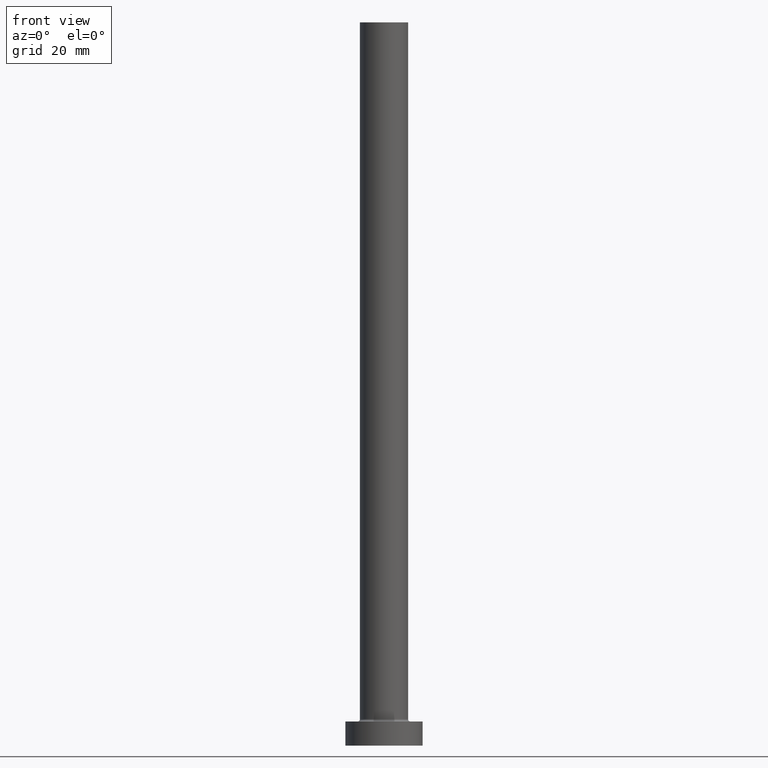
[diagram: clean part render]
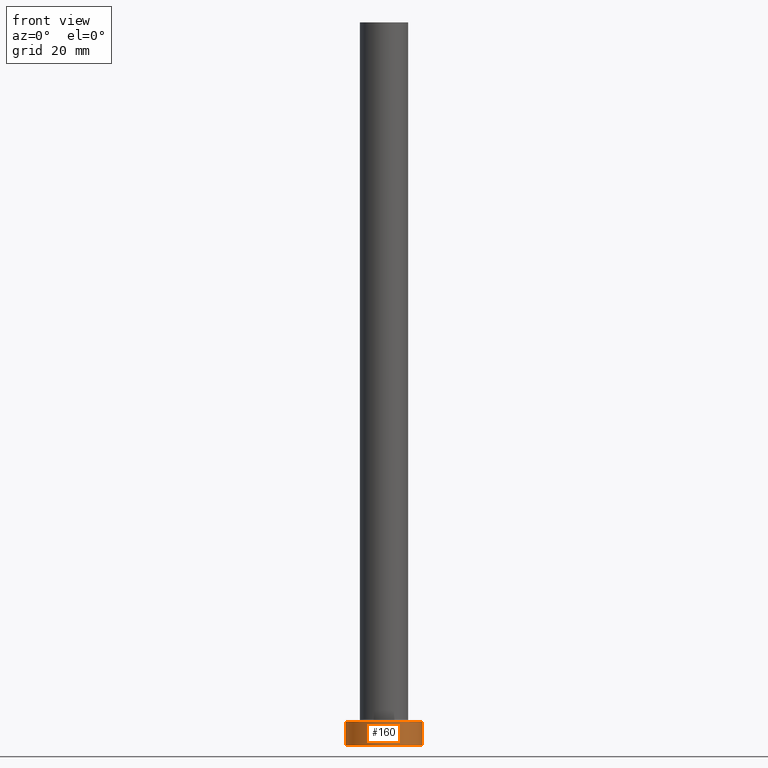
[diagram: same view with one face highlighted and labeled with its STEP entity id]
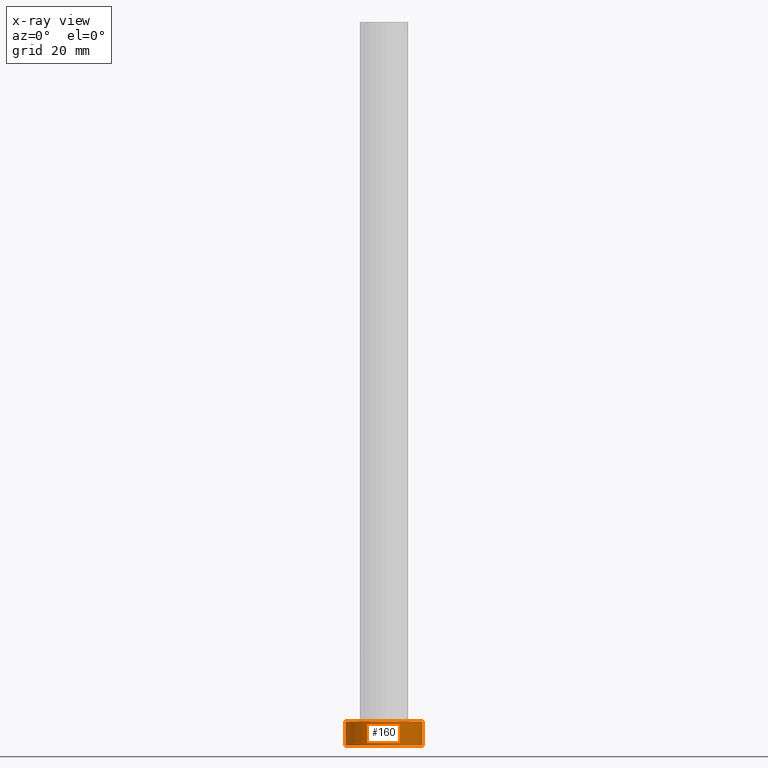
[diagram: x-ray of the same camera — body ghosted, the highlighted face saturated]
A machine part, front view. The second image highlights one B-rep face of the part: STEP entity #160.
The next image is the same camera in x-ray: the body ghosted, the highlighted face saturated — about 0% of this face is hidden behind the body in this view.
In plain terms, the highlighted cylindrical surface (partial cylindrical patch) has radius 8 mm, axis along (-0, -0, -1).
Its self-contained STEP definition (entity closure, byte-faithful):
#12 = DIRECTION ( 'NONE',  ( 1.000000000000000000, 0.000000000000000000, 0.000000000000000000 ) ) ;
#19 = DIRECTION ( 'NONE',  ( 0.000000000000000000, 0.000000000000000000, 1.000000000000000000 ) ) ;
#29 = CARTESIAN_POINT ( 'NONE',  ( 8.000000000000000000, 9.797174393178825657E-16, 5.000000000000000000 ) ) ;
#43 = DIRECTION ( 'NONE',  ( -0.000000000000000000, -0.000000000000000000, -1.000000000000000000 ) ) ;
#73 = CIRCLE ( 'NONE', #407, 8.000000000000000000 ) ;
#82 = EDGE_CURVE ( 'NONE', #322, #319, #295, .T. ) ;
#96 = LINE ( 'NONE', #234, #263 ) ;
#126 = CARTESIAN_POINT ( 'NONE',  ( 0.000000000000000000, 0.000000000000000000, 5.000000000000000000 ) ) ;
#127 = ORIENTED_EDGE ( 'NONE', *, *, #443, .F. ) ;
#134 = VERTEX_POINT ( 'NONE', #215 ) ;
#147 = FACE_OUTER_BOUND ( 'NONE', #179, .T. ) ;
#160 = ADVANCED_FACE ( 'NONE', ( #147 ), #290, .T. ) ;
#166 = LINE ( 'NONE', #29, #394 ) ;
#179 = EDGE_LOOP ( 'NONE', ( #127, #288, #230, #294 ) ) ;
#215 = CARTESIAN_POINT ( 'NONE',  ( 8.000000000000000000, 9.797174393178825657E-16, 5.000000000000000000 ) ) ;
#219 = CARTESIAN_POINT ( 'NONE',  ( 0.000000000000000000, 0.000000000000000000, 5.000000000000000000 ) ) ;
#229 = DIRECTION ( 'NONE',  ( 0.000000000000000000, 0.000000000000000000, 1.000000000000000000 ) ) ;
#230 = ORIENTED_EDGE ( 'NONE', *, *, #265, .T. ) ;
#234 = CARTESIAN_POINT ( 'NONE',  ( -8.000000000000000000, 0.000000000000000000, 5.000000000000000000 ) ) ;
#253 = EDGE_CURVE ( 'NONE', #424, #134, #73, .T. ) ;
#263 = VECTOR ( 'NONE', #282, 1000.000000000000000 ) ;
#265 = EDGE_CURVE ( 'NONE', #424, #322, #96, .T. ) ;
#267 = DIRECTION ( 'NONE',  ( 1.000000000000000000, 0.000000000000000000, 0.000000000000000000 ) ) ;
#275 = AXIS2_PLACEMENT_3D ( 'NONE', #428, #229, #12 ) ;
#278 = CARTESIAN_POINT ( 'NONE',  ( 8.000000000000000000, 9.797174393178825657E-16, 0.000000000000000000 ) ) ;
#282 = DIRECTION ( 'NONE',  ( -0.000000000000000000, -0.000000000000000000, -1.000000000000000000 ) ) ;
#288 = ORIENTED_EDGE ( 'NONE', *, *, #253, .F. ) ;
#290 = CYLINDRICAL_SURFACE ( 'NONE', #400, 8.000000000000000000 ) ;
#292 = DIRECTION ( 'NONE',  ( -1.000000000000000000, 0.000000000000000000, 0.000000000000000000 ) ) ;
#294 = ORIENTED_EDGE ( 'NONE', *, *, #82, .T. ) ;
#295 = CIRCLE ( 'NONE', #275, 8.000000000000000000 ) ;
#313 = DIRECTION ( 'NONE',  ( -0.000000000000000000, -0.000000000000000000, -1.000000000000000000 ) ) ;
#319 = VERTEX_POINT ( 'NONE', #278 ) ;
#322 = VERTEX_POINT ( 'NONE', #419 ) ;
#394 = VECTOR ( 'NONE', #313, 1000.000000000000000 ) ;
#400 = AXIS2_PLACEMENT_3D ( 'NONE', #219, #43, #292 ) ;
#407 = AXIS2_PLACEMENT_3D ( 'NONE', #126, #19, #267 ) ;
#408 = CARTESIAN_POINT ( 'NONE',  ( -8.000000000000000000, 0.000000000000000000, 5.000000000000000000 ) ) ;
#419 = CARTESIAN_POINT ( 'NONE',  ( -8.000000000000000000, 0.000000000000000000, 0.000000000000000000 ) ) ;
#424 = VERTEX_POINT ( 'NONE', #408 ) ;
#428 = CARTESIAN_POINT ( 'NONE',  ( 0.000000000000000000, 0.000000000000000000, 0.000000000000000000 ) ) ;
#443 = EDGE_CURVE ( 'NONE', #134, #319, #166, .T. ) ;